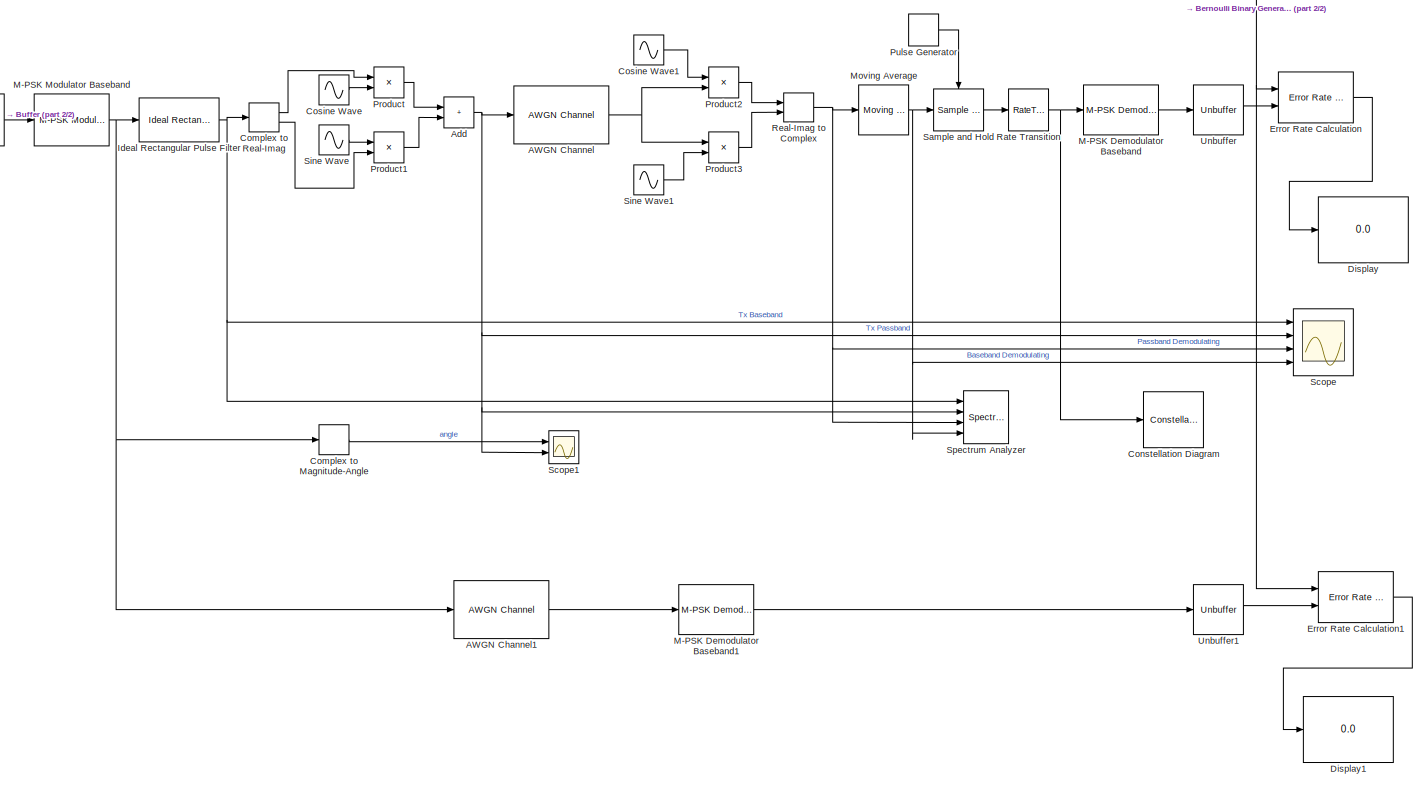
[diagram: root canvas - part 1/2, most of the canvas]
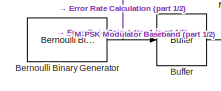
[diagram: root canvas - part 2/2, top left region]
MODEL slx_fd471d77dcd9
KIND model
CONFIG AbsTol = auto
CONFIG EnableMultiTasking = off
CONFIG FixedStep = auto
CONFIG MaxStep = auto
CONFIG MinStep = auto
CONFIG RelTol = 1e-3
CONFIG SampleTimeConstraint = Unconstrained
CONFIG SolverName = VariableStepAuto
CONFIG StartTime = 0.0
CONFIG StopTime = 10
BLOCK [Reference] AWGN Channel  REF=commchan3/AWGN
Channel
  Ports = [1, 1]
  SourceBlock = commchan3/AWGN\nChannel
  SourceProductBaseCode = CM
  SourceType = AWGN Channel
  UserDataPersistent = on
BLOCK [Reference] AWGN Channel1  REF=commchan3/AWGN
Channel
  Ports = [1, 1]
  SourceBlock = commchan3/AWGN\nChannel
  SourceProductBaseCode = CM
  SourceType = AWGN Channel
  UserDataPersistent = on
BLOCK [Sum] Add
  IconShape = rectangular
  Ports = [2, 1]
BLOCK [Reference] Bernoulli Binary Generator  REF=commrandsrc3/Bernoulli Binary
Generator
  Ports = [0, 1]
  SourceBlock = commrandsrc3/Bernoulli Binary\nGenerator
  SourceProductBaseCode = CM
  SourceType = Bernoulli Binary Generator
BLOCK [Buffer] Buffer
  N = k
  OutputFrames = off
BLOCK [ComplexToMagnitudeAngle] Complex to Magnitude-Angle
  Output = Angle
  Ports = [1, 1]
BLOCK [ComplexToRealImag] Complex to Real-Imag
  Ports = [1, 2]
BLOCK [ConstellationDiagram] Constellation Diagram
  GraphicalSettings = {"Style":{"BackgroundColor":[0.1568627450980392,0.1568627450980392,0.1568627450980392],"AxesColor":[0,0,0],"LabelsColor":[0.6862745098039216,0.6862745098039216,0.6862745098039216],"LineStyle":["NONE","NONE"],"LineColor":[[1,1,0.06666666666666667],[1,0,0]],"LineWidth":[1,1],"Marker":[".","+"],"IsRefLine":[false,true],"FontSize":"small"},"ReferenceConstellation":[{"RefConstellationValue":"[0.7071+0....<+147ch>
  Ports = [1]
  ScopeFrameLocation = window
  SymbolsToDisplay = 100
  SymbolsToDisplaySource = Property
  WasSavedAsWebScope = on
  WindowPosition = [128.000000,126.000000,600.000000,586.000000,]
  XLimits = [-1.49,1.49]
  YLimits = [-1.38,1.38]
BLOCK [Sin] Cosine Wave
  Amplitude = sqrt(2)
  Frequency = 2*pi*(10e3)
  Phase = pi/2
  Ports = [0, 1]
  SampleTime = 1e-6
BLOCK [Sin] Cosine Wave1
  Amplitude = sqrt(2)
  Frequency = 2*pi*(10e3)
  Phase = pi/2
  Ports = [0, 1]
  SampleTime = 1e-6
BLOCK [Display] Display
  Decimation = 1
  Ports = [1]
BLOCK [Display] Display1
  Decimation = 1
  Ports = [1]
BLOCK [Reference] Error Rate Calculation  REF=commsink2/Error Rate
Calculation
  Ports = [2, 1]
  SourceBlock = commsink2/Error Rate\nCalculation
  SourceProductBaseCode = CM
  SourceType = Error Rate Calculation
BLOCK [Reference] Error Rate Calculation1  REF=commsink2/Error Rate
Calculation
  Ports = [2, 1]
  SourceBlock = commsink2/Error Rate\nCalculation
  SourceProductBaseCode = CM
  SourceType = Error Rate Calculation
BLOCK [Reference] Ideal Rectangular Pulse Filter  REF=commfilt2/Ideal Rectangular
Pulse Filter
  Ports = [1, 1]
  SourceBlock = commfilt2/Ideal Rectangular\nPulse Filter
  SourceProductBaseCode = CM
  SourceType = Ideal Rectangular Pulse Filter
  UserDataPersistent = on
BLOCK [Reference] M-PSK Demodulator Baseband  REF=commdigbbndpm3/M-PSK
Demodulator
Baseband
  Ports = [1, 1]
  SourceBlock = commdigbbndpm3/M-PSK\nDemodulator\nBaseband
  SourceProductBaseCode = CM
  SourceType = M-PSK Demodulator Baseband
BLOCK [Reference] M-PSK Demodulator Baseband1  REF=commdigbbndpm3/M-PSK
Demodulator
Baseband
  Ports = [1, 1]
  SourceBlock = commdigbbndpm3/M-PSK\nDemodulator\nBaseband
  SourceProductBaseCode = CM
  SourceType = M-PSK Demodulator Baseband
BLOCK [Reference] M-PSK Modulator Baseband  REF=commdigbbndpm3/M-PSK
Modulator
Baseband
  Ports = [1, 1]
  SourceBlock = commdigbbndpm3/M-PSK\nModulator\nBaseband
  SourceProductBaseCode = CM
  SourceType = M-PSK Modulator Baseband
BLOCK [Reference] Moving Average  REF=dspstat3/Moving
Average
  Ports = [1, 1]
  SourceBlock = dspstat3/Moving\nAverage
  SourceProductBaseCode = DS
  SourceType = dsp.simulink.MovingAverage
BLOCK [Product] Product
  Ports = [2, 1]
BLOCK [Product] Product1
  Ports = [2, 1]
BLOCK [Product] Product2
  Ports = [2, 1]
BLOCK [Product] Product3
  Ports = [2, 1]
BLOCK [DiscretePulseGenerator] Pulse Generator
  Period = k*1e3
  Ports = [0, 1]
  SampleTime = 1e-6
BLOCK [RateTransition] Rate Transition
  OutPortSampleTime = k*1e-3
BLOCK [RealImagToComplex] Real-Imag to Complex
  Ports = [2, 1]
BLOCK [Reference] Sample and Hold  REF=dspsigops/Sample
and Hold
  Ports = [1, 1, 0, 1]
  SourceBlock = dspsigops/Sample\nand Hold
  SourceProductBaseCode = DS
  SourceType = Sample and Hold
BLOCK [Scope] Scope
  Commented = on
  Floating = off
  NumInputPorts = 4
  Ports = [4]
  ScopeSpecificationString = Simulink.scopes.TimeScopeBlockCfg('CurrentConfiguration', extmgr.ConfigurationSet(extmgr.Configuration('Core','General UI',true),extmgr.Configuration('Core','Source UI',true),extmgr.Configuration('Sources','WiredSimulink',true),extmgr.Configuration('Visuals','Time Domain',true,'SerializedDisplays',{struct('MinYLimReal','-0.88388','MaxYLimReal','0.88388','YLabelReal','','MinYLimMag','0.00000','MaxY...<+3578ch>
BLOCK [Scope] Scope1
  Floating = off
  NumInputPorts = 2
  Ports = [2]
  ScopeSpecificationString = Simulink.scopes.TimeScopeBlockCfg('CurrentConfiguration', extmgr.ConfigurationSet(extmgr.Configuration('Core','General UI',true),extmgr.Configuration('Core','Source UI',true),extmgr.Configuration('Sources','WiredSimulink',true,'DataLoggingVariableName','ScopeData1'),extmgr.Configuration('Visuals','Time Domain',true,'SerializedDisplays',{struct('MinYLimReal','-2.94524','MaxYLimReal','2.94524','YLab...<+2129ch>
BLOCK [Sin] Sine Wave
  Amplitude = sqrt(2)
  Frequency = 2*pi*(10e3)
  Phase = pi
  Ports = [0, 1]
  SampleTime = 1e-6
BLOCK [Sin] Sine Wave1
  Amplitude = sqrt(2)
  Frequency = 2*pi*(10e3)
  Phase = pi
  Ports = [0, 1]
  SampleTime = 1e-6
BLOCK [SpectrumAnalyzer] Spectrum Analyzer
  Commented = on
  NumInputPorts = 4
  Ports = [4]
  ScopeSpecificationString = spbscopes.SpectrumAnalyzerBlockCfg('CurrentConfiguration', extmgr.ConfigurationSet(extmgr.Configuration('Core','General UI',true),extmgr.Configuration('Core','Source UI',true),extmgr.Configuration('Sources','WiredSimulink',true),extmgr.Configuration('Visuals','Spectrum',true,'AxesProperties',struct('Color',{[0 0 0],[0 0 0]},'XColor',{[0.686274509803922 0.686274509803922 0.686274509803922],[0.68627...<+2369ch>
BLOCK [Unbuffer] Unbuffer
  Ports = [1, 1]
BLOCK [Unbuffer] Unbuffer1
  Ports = [1, 1]
LINE AWGN Channel1:1 -> M-PSK Demodulator Baseband1:1
NET AWGN Channel:1 -> Product2:2, Product3:1
NET Add:1 -> AWGN Channel:1, Scope1:2, Scope:2, Spectrum Analyzer:2
NET Bernoulli Binary Generator:1 -> Buffer:1, Error Rate Calculation1:1, Error Rate Calculation:1
LINE Buffer:1 -> M-PSK Modulator Baseband:1
LINE Complex to Magnitude-Angle:1 -> Scope1:1
LINE Complex to Real-Imag:1 -> Product:1
LINE Complex to Real-Imag:2 -> Product1:2
LINE Cosine Wave1:1 -> Product2:1
LINE Cosine Wave:1 -> Product:2
LINE Error Rate Calculation1:1 -> Display1:1
LINE Error Rate Calculation:1 -> Display:1
NET Ideal Rectangular Pulse Filter:1 -> Complex to Real-Imag:1, Scope:1, Spectrum Analyzer:1
LINE M-PSK Demodulator Baseband1:1 -> Unbuffer1:1
LINE M-PSK Demodulator Baseband:1 -> Unbuffer:1
NET M-PSK Modulator Baseband:1 -> AWGN Channel1:1, Complex to Magnitude-Angle:1, Ideal Rectangular Pulse Filter:1
NET Moving Average:1 -> Sample and Hold:1, Scope:4, Spectrum Analyzer:4
LINE Product1:1 -> Add:2
LINE Product2:1 -> Real-Imag to Complex:1
LINE Product3:1 -> Real-Imag to Complex:2
LINE Product:1 -> Add:1
LINE Pulse Generator:1 -> Sample and Hold:trigger
NET Rate Transition:1 -> Constellation Diagram:1, M-PSK Demodulator Baseband:1
NET Real-Imag to Complex:1 -> Moving Average:1, Scope:3, Spectrum Analyzer:3
LINE Sample and Hold:1 -> Rate Transition:1
LINE Sine Wave1:1 -> Product3:2
LINE Sine Wave:1 -> Product1:1
LINE Unbuffer1:1 -> Error Rate Calculation1:2
LINE Unbuffer:1 -> Error Rate Calculation:2
note: NET lines group one-source signal fan-out (src -> all destinations, sorted); 1:1 wires keep LINE
